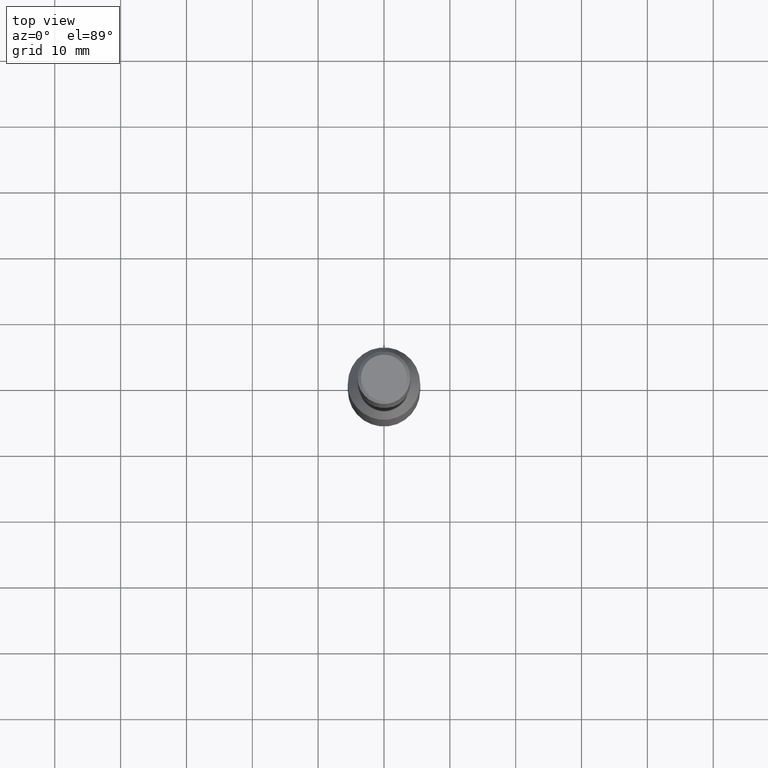
[diagram: clean part render]
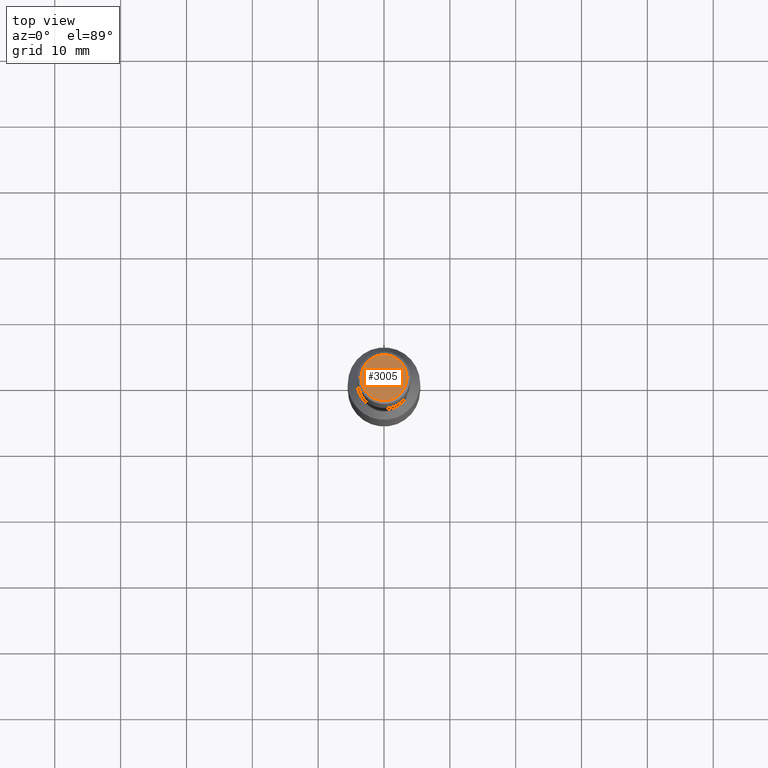
[diagram: same view with one face highlighted and labeled with its STEP entity id]
A machine part, top view. The second image highlights one B-rep face of the part: STEP entity #3005.
In plain terms, the highlighted planar face has unit normal (0, 0, 1).
Its self-contained STEP definition (entity closure, byte-faithful):
#1583 = AXIS2_PLACEMENT_3D ( 'NONE', #7166, #9300, #3880 ) ;
#1631 = FACE_OUTER_BOUND ( 'NONE', #11300, .T. ) ;
#2055 = PLANE ( 'NONE',  #9205 ) ;
#3005 = ADVANCED_FACE ( 'NONE', ( #1631 ), #2055, .T. ) ;
#3112 = ORIENTED_EDGE ( 'NONE', *, *, #10158, .T. ) ;
#3318 = CIRCLE ( 'NONE', #1583, 3.500000000000016875 ) ;
#3452 = VERTEX_POINT ( 'NONE', #11317 ) ;
#3880 = DIRECTION ( 'NONE',  ( 1.000000000000000000, 0.000000000000000000, 0.000000000000000000 ) ) ;
#7166 = CARTESIAN_POINT ( 'NONE',  ( 0.000000000000000000, 0.000000000000000000, 110.0000000000000000 ) ) ;
#9205 = AXIS2_PLACEMENT_3D ( 'NONE', #12764, #13832, #13743 ) ;
#9300 = DIRECTION ( 'NONE',  ( 0.000000000000000000, 0.000000000000000000, 1.000000000000000000 ) ) ;
#10158 = EDGE_CURVE ( 'NONE', #3452, #3452, #3318, .T. ) ;
#11300 = EDGE_LOOP ( 'NONE', ( #3112 ) ) ;
#11317 = CARTESIAN_POINT ( 'NONE',  ( 3.500000000000016875, 0.000000000000000000, 110.0000000000000000 ) ) ;
#12764 = CARTESIAN_POINT ( 'NONE',  ( 0.000000000000000000, 0.000000000000000000, 110.0000000000000000 ) ) ;
#13743 = DIRECTION ( 'NONE',  ( 1.000000000000000000, 0.000000000000000000, -0.000000000000000000 ) ) ;
#13832 = DIRECTION ( 'NONE',  ( 0.000000000000000000, 0.000000000000000000, 1.000000000000000000 ) ) ;